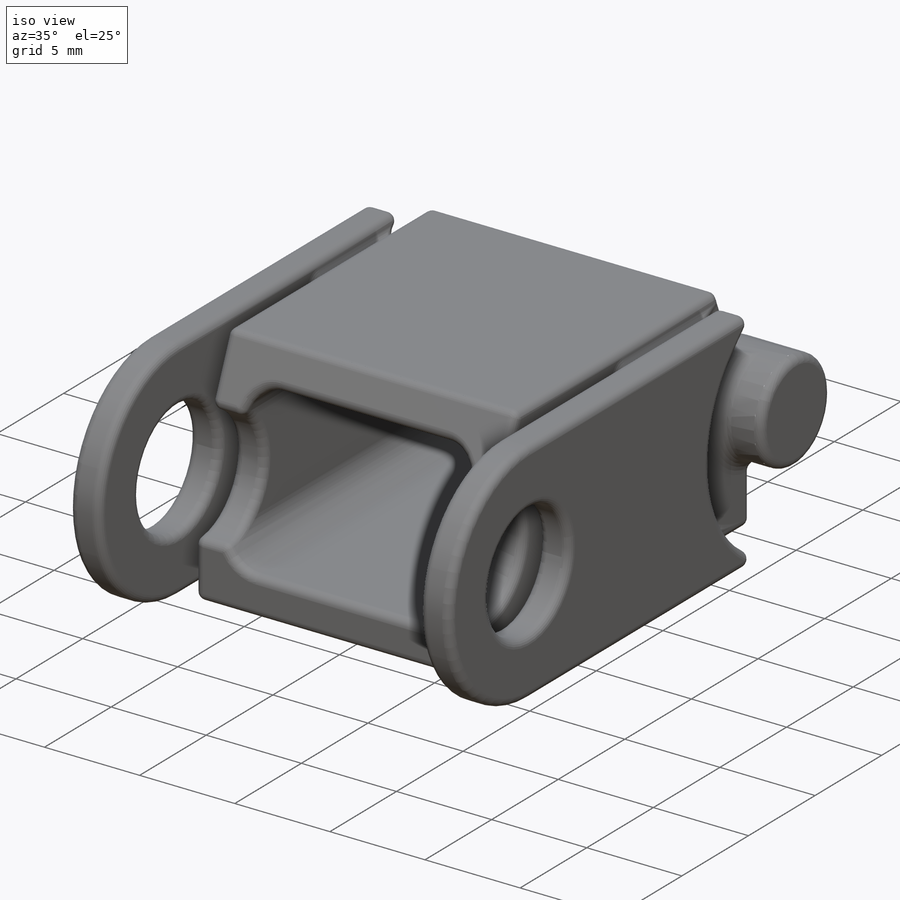
[diagram: iso view]
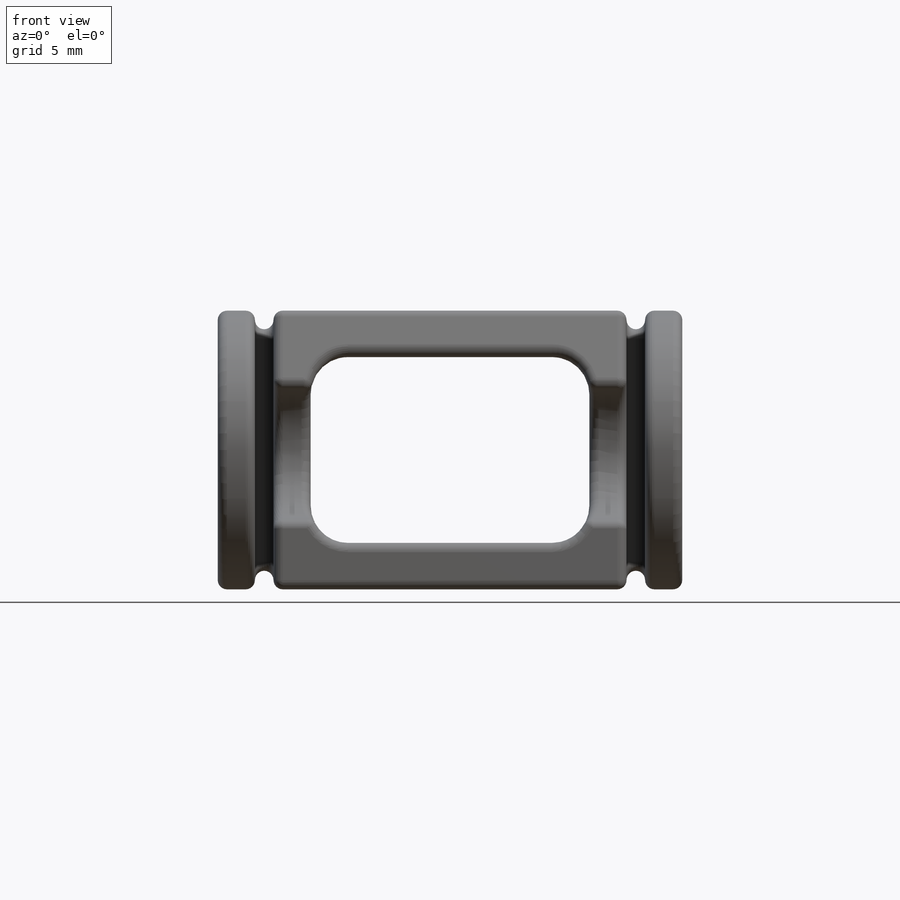
[diagram: front view]
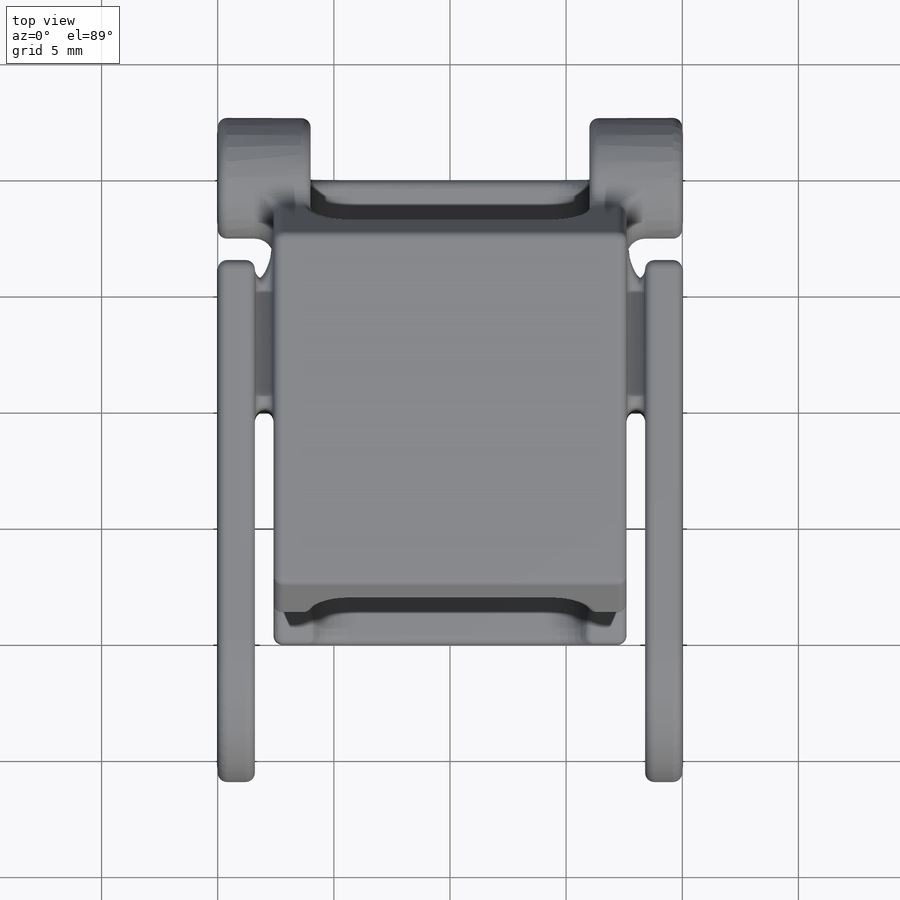
[diagram: top view]
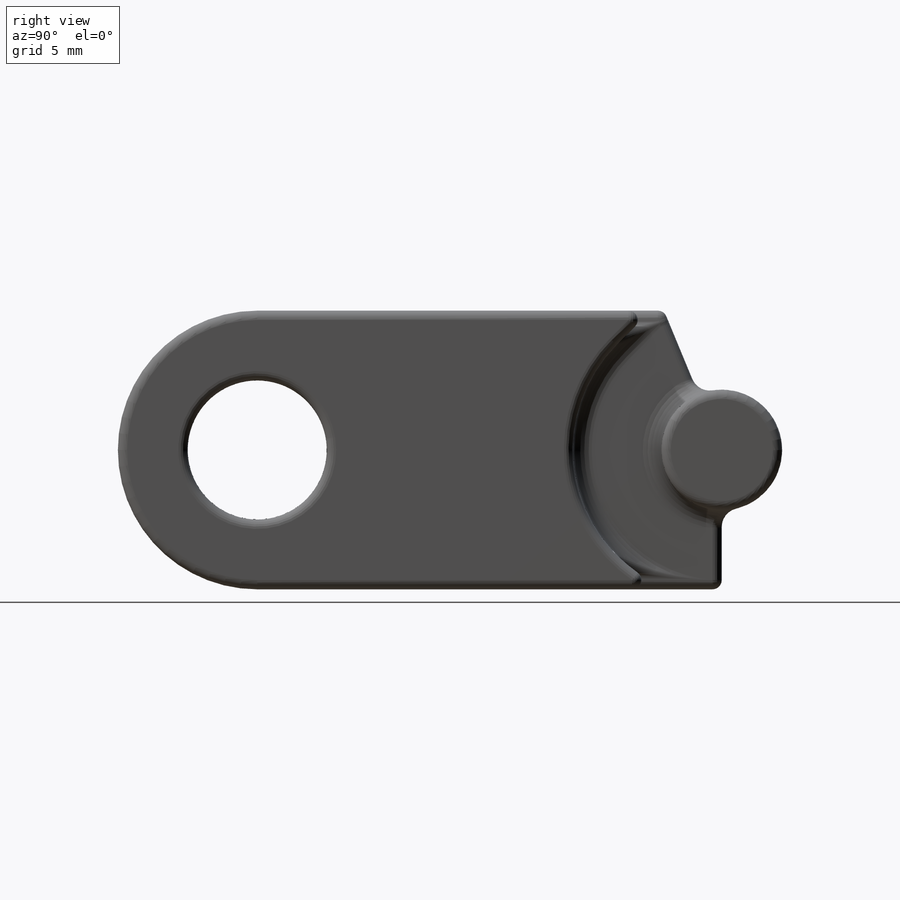
[diagram: right view]
SOLIDWORKS PART (.sldprt)
format: sldprt  version: not decoded by parser v0  size: 983,040 bytes
history: native  units: mm
features: sketch x7, extrude x4, fillet x4, cut_extrude x3, material x1, mirror x1 (+13 scaffold rows collapsed)
feature tree (33):
  scaffold x13  (default folders/planes/origin — collapsed)
  material  "Material <not specified>"
  sketch  "Sketch8"  dims[c1.D1=20.0mm c1.D2=6.0mm c1.D3=6.0mm c1.D4=~4.358974mm c2.D4=22.5deg c2.D5=6.0mm c3.D5=22.5deg]
  extrude  "Boss-Extrude5"  Depth=15.2mm
  sketch  "Sketch9"  dims[D1=10.4mm D2=10.0mm]
  extrude  "Boss-Extrude6"  Depth=0.8mm
  sketch  "Sketch10"
  extrude  "Boss-Extrude7"  Depth=1.6mm
  sketch  "Sketch4"  dims[c1.D2=12.8mm c1.D1=~4.742332mm c2.D1=45.0deg]
  cut_extrude  "Cut-Extrude1"  Depth=2.4mm
  fillet  "Fillet16"  Radius=0.4mm
  mirror  "Mirror1"
  sketch  "Sketch6"  dims[D1=6.0mm]
  cut_extrude  "Cut-Extrude2"  Depth=20mm
  sketch  "Sketch5"  dims[D1=5.2mm]
  extrude  "Boss-Extrude4"  Depth=20mm
  sketch  "Sketch7"  dims[D3=1.6mm D1=12.0mm D2=8.0mm]
  cut_extrude  "Cut-Extrude3"  [1 undecoded]
  fillet  "Fillet2"  Radius=0.8mm
  fillet  "Fillet17"  Radius=0.4mm
  fillet  "Fillet18"  Radius=0.4mm
decode coverage: 16 of 19 modeling features carry decoded parameters
note: ~ marks probable driven/reference dimensions
note: 1 parameter value undecoded
note: suppression state not decoded; provenance and decode notes live in map.json
